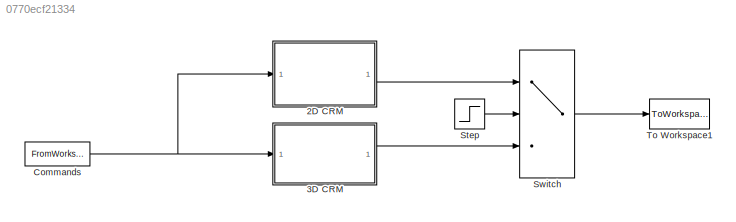
MODEL slx_0770ecf21334
KIND model
CONFIG AbsTol = auto
CONFIG EnableMultiTasking = off
CONFIG FixedStep = dT
CONFIG MaxStep = auto
CONFIG MinStep = 1e-5
CONFIG RelTol = 1e-6
CONFIG SampleTimeConstraint = Unconstrained
CONFIG Solver = FixedStepAuto
CONFIG SolverName = FixedStepAuto
CONFIG StartTime = 0.0
CONFIG StopTime = tfin
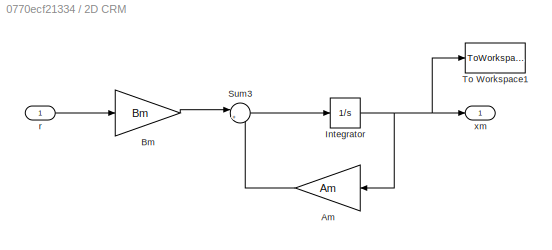
BLOCK [SubSystem] 2D CRM
  Ports = [1, 1]
  RequestExecContextInheritance = off
  Variant = off
BLOCK [Gain] 2D CRM/Am
  Gain = Am
  Multiplication = Matrix(K*u)
  OutDataTypeStr = Inherit: Inherit via internal rule
  ParamDataTypeStr = Inherit: Inherit via internal rule
  SaturateOnIntegerOverflow = off
BLOCK [Gain] 2D CRM/Bm
  Gain = Bm
  Multiplication = Matrix(K*u)
  OutDataTypeStr = Inherit: Inherit via internal rule
  ParamDataTypeStr = Inherit: Inherit via internal rule
  SaturateOnIntegerOverflow = off
BLOCK [Integrator] 2D CRM/Integrator
  Ports = [1, 1]
BLOCK [Sum] 2D CRM/Sum3
  IconShape = round
  InputSameDT = off
  Inputs = |++
  OutDataTypeStr = Inherit: Inherit via internal rule
  Ports = [2, 1]
  SaturateOnIntegerOverflow = off
BLOCK [ToWorkspace] 2D CRM/To Workspace1
  FixptAsFi = on
  MaxDataPoints = inf
  Ports = [1]
  SampleTime = -1
  Save2DSignal = 3-D array (concatenate along third dimension)
  VariableName = xm_ol
BLOCK [Inport] 2D CRM/r
  IconDisplay = Port number
BLOCK [Outport] 2D CRM/xm
  IconDisplay = Port number
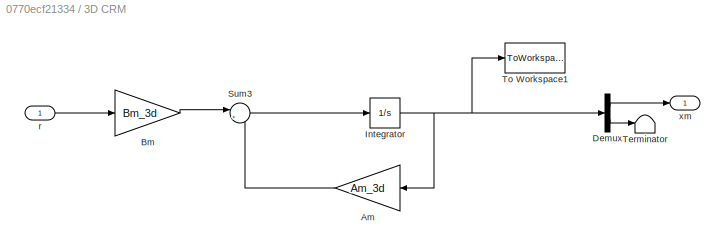
BLOCK [SubSystem] 3D CRM
  Ports = [1, 1]
  RequestExecContextInheritance = off
  Variant = off
BLOCK [Gain] 3D CRM/Am
  Gain = Am_3d
  Multiplication = Matrix(K*u)
  OutDataTypeStr = Inherit: Inherit via internal rule
  ParamDataTypeStr = Inherit: Inherit via internal rule
  SaturateOnIntegerOverflow = off
BLOCK [Gain] 3D CRM/Bm
  Gain = Bm_3d
  Multiplication = Matrix(K*u)
  OutDataTypeStr = Inherit: Inherit via internal rule
  ParamDataTypeStr = Inherit: Inherit via internal rule
  SaturateOnIntegerOverflow = off
BLOCK [Demux] 3D CRM/Demux
  DisplayOption = bar
  Outputs = [2 1]
  Ports = [1, 2]
BLOCK [Integrator] 3D CRM/Integrator
  Ports = [1, 1]
BLOCK [Sum] 3D CRM/Sum3
  IconShape = round
  InputSameDT = off
  Inputs = |++
  OutDataTypeStr = Inherit: Inherit via internal rule
  Ports = [2, 1]
  SaturateOnIntegerOverflow = off
BLOCK [Terminator] 3D CRM/Terminator
BLOCK [ToWorkspace] 3D CRM/To Workspace1
  FixptAsFi = on
  MaxDataPoints = inf
  Ports = [1]
  SampleTime = -1
  Save2DSignal = 3-D array (concatenate along third dimension)
  VariableName = xm_3d_ol
BLOCK [Inport] 3D CRM/r
  IconDisplay = Port number
BLOCK [Outport] 3D CRM/xm
  IconDisplay = Port number
BLOCK [FromWorkspace] Commands
  Interpolate = off
  OutputAfterFinalValue = Setting to zero
  SampleTime = 0
  VariableName = r_timed
  ZeroCross = on
BLOCK [Step] Step
  After = 0
  Before = 1
  SampleTime = 0
  Time = ts_rm
BLOCK [Switch] Switch
  Criteria = u2 > Threshold
  InputSameDT = off
  SaturateOnIntegerOverflow = off
  Threshold = 0.5
BLOCK [ToWorkspace] To Workspace1
  FixptAsFi = on
  MaxDataPoints = inf
  Ports = [1]
  SampleTime = -1
  Save2DSignal = 3-D array (concatenate along third dimension)
  VariableName = xm_full_ol
LINE 2D CRM/Am:1 -> 2D CRM/Sum3:2
LINE 2D CRM/Bm:1 -> 2D CRM/Sum3:1
NET 2D CRM/Integrator:1 -> 2D CRM/Am:1, 2D CRM/To Workspace1:1, 2D CRM/xm:1
LINE 2D CRM/Sum3:1 -> 2D CRM/Integrator:1
LINE 2D CRM/r:1 -> 2D CRM/Bm:1
LINE 2D CRM:1 -> Switch:1
LINE 3D CRM/Am:1 -> 3D CRM/Sum3:2
LINE 3D CRM/Bm:1 -> 3D CRM/Sum3:1
LINE 3D CRM/Demux:1 -> 3D CRM/xm:1
LINE 3D CRM/Demux:2 -> 3D CRM/Terminator:1
NET 3D CRM/Integrator:1 -> 3D CRM/Am:1, 3D CRM/Demux:1, 3D CRM/To Workspace1:1
LINE 3D CRM/Sum3:1 -> 3D CRM/Integrator:1
LINE 3D CRM/r:1 -> 3D CRM/Bm:1
LINE 3D CRM:1 -> Switch:3
NET Commands:1 -> 2D CRM:1, 3D CRM:1
LINE Step:1 -> Switch:2
LINE Switch:1 -> To Workspace1:1
note: NET lines group one-source signal fan-out (src -> all destinations, sorted); 1:1 wires keep LINE
